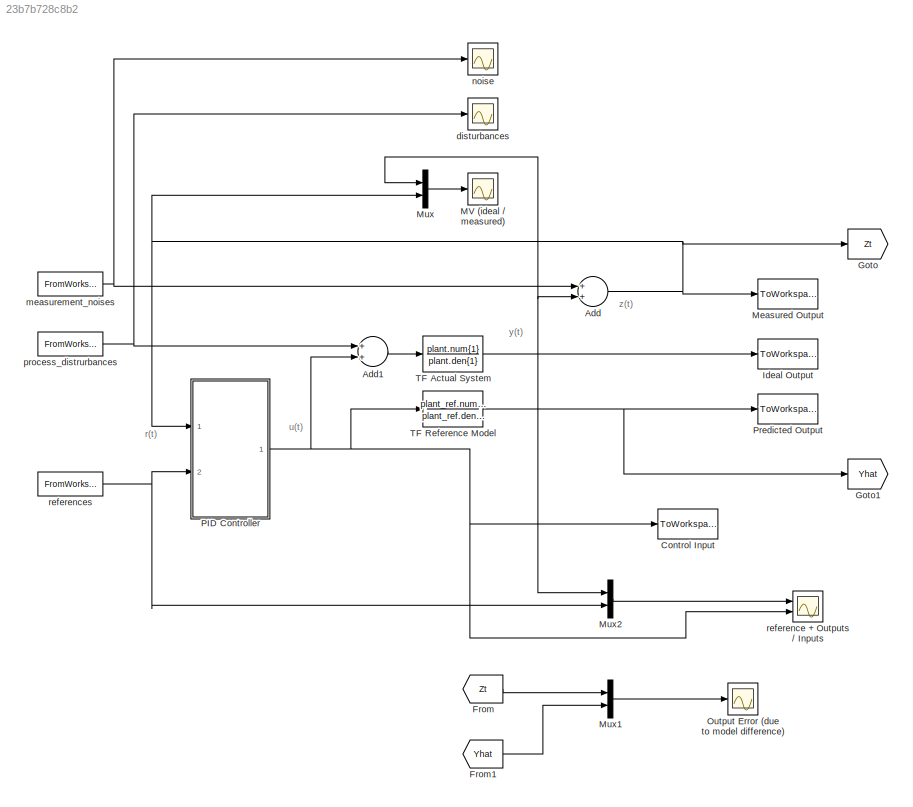
MODEL slx_23b7b728c8b2
KIND model
CONFIG AbsTol = auto
CONFIG FixedStep = auto
CONFIG MaxStep = auto
CONFIG MinStep = auto
CONFIG RelTol = 1e-3
CONFIG SampleTimeConstraint = Unconstrained
CONFIG Solver = ode45
CONFIG SolverMode = SingleTasking
CONFIG SolverName = ode45
CONFIG StartTime = 0.0
CONFIG StopTime = simu.time
BLOCK [Sum] Add
  InputSameDT = off
  OutDataTypeStr = Inherit: Inherit via internal rule
  Ports = [2, 1]
  SaturateOnIntegerOverflow = off
BLOCK [Sum] Add1
  InputSameDT = off
  OutDataTypeStr = Inherit: Inherit via internal rule
  Ports = [2, 1]
  SaturateOnIntegerOverflow = off
BLOCK [ToWorkspace] Control Input
  MaxDataPoints = Inf
  Ports = [1]
  SampleTime = simu.samlping_time
  VariableName = u
BLOCK [From] From
  GotoTag = Zt
BLOCK [From] From1
  GotoTag = Yhat
BLOCK [Goto] Goto
  GotoTag = Zt
BLOCK [Goto] Goto1
  GotoTag = Yhat
BLOCK [ToWorkspace] Ideal Output
  MaxDataPoints = Inf
  Ports = [1]
  SampleTime = simu.samlping_time
  VariableName = y
BLOCK [Scope] MV (ideal // measured)
  DataFormat = Structure
  Floating = off
  LimitDataPoints = off
  NumInputPorts = 1
  Ports = [1]
  SaveName = ScopeData1
  TimeRange = 10
  YMax = 1.75
  YMin = -1.5
  ZoomMode = xonly
BLOCK [ToWorkspace] Measured Output
  MaxDataPoints = Inf
  Ports = [1]
  SampleTime = simu.samlping_time
  VariableName = z
BLOCK [Mux] Mux
  DisplayOption = bar
  Inputs = 2
  Ports = [2, 1]
BLOCK [Mux] Mux1
  DisplayOption = bar
  Inputs = 2
  Ports = [2, 1]
BLOCK [Mux] Mux2
  DisplayOption = bar
  Inputs = 2
  Ports = [2, 1]
BLOCK [Scope] Output Error (due to model difference)
  DataFormat = Structure
  Floating = off
  LimitDataPoints = off
  NumInputPorts = 1
  Ports = [1]
  SampleInput = on
  SampleTime = simu.samlping_time
  SaveName = ScopeData2
  TimeRange = 10
  YMax = -29.6
  YMin = -29.95
  ZoomMode = xonly
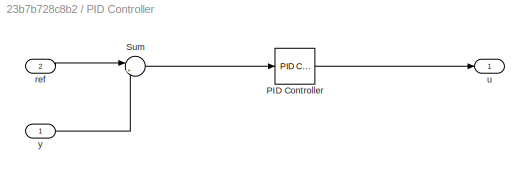
BLOCK [SubSystem] PID Controller
  Ports = [2, 1]
  RequestExecContextInheritance = off
BLOCK [Reference] PID Controller/PID Controller  REF=simulink/Continuous/PID Controller
  AntiWindupMode = none
  Controller = PID
  ControllerParametersSource = internal
  D = 0
  DGainOutDataTypeStr = Inherit: Inherit via internal rule
  DOutDataTypeStr = Inherit: Inherit via internal rule
  DOutMax = []
  DOutMin = []
  DParamDataTypeStr = Inherit: Inherit via internal rule
  DParamMax = []
  DParamMin = []
  DProdOutDataTypeStr = Inherit: Inherit via internal rule
  DifferentiatorICPrevScaledInput = 0
  DifferentiatorOutDataTypeStr = Inherit: Inherit via internal rule
  DifferentiatorOutMax = []
  DifferentiatorOutMin = []
  ExternalReset = none
  FilterContinuousStateAttributes = ''
  FilterMethod = Forward Euler
  FilterOutDataTypeStr = Inherit: Inherit via internal rule
  FilterOutMax = []
  FilterOutMin = []
  FilterRTWStateStorageClass = Auto
  FilterStateMustResolveToSignalObject = off
  Form = Parallel
  I = 1
  IGainOutDataTypeStr = Inherit: Inherit via internal rule
  IOutDataTypeStr = Inherit: Inherit via internal rule
  IOutMax = []
  IOutMin = []
  IParamDataTypeStr = Inherit: Inherit via internal rule
  IParamMax = []
  IParamMin = []
  IProdOutDataTypeStr = Inherit: Inherit via internal rule
  IgnoreLimit = off
  InitialConditionForFilter = 0
  InitialConditionForIntegrator = 0
  InitialConditionSource = internal
  IntegratorContinuousStateAttributes = ''
  IntegratorMethod = Forward Euler
  IntegratorOutDataTypeStr = Inherit: Inherit via internal rule
  IntegratorOutMax = []
  IntegratorOutMin = []
  IntegratorRTWStateStorageClass = Auto
  IntegratorStateMustResolveToSignalObject = off
  Kb = 1
  KbOutDataTypeStr = Inherit: Inherit via internal rule
  KbOutMax = []
  KbOutMin = []
  KbParamDataTypeStr = Inherit: Inherit via internal rule
  KbParamMax = []
  KbParamMin = []
  Kt = 1
  KtOutDataTypeStr = Inherit: Inherit via internal rule
  KtOutMax = []
  KtOutMin = []
  KtParamDataTypeStr = Inherit: Inherit via internal rule
  KtParamMax = []
  KtParamMin = []
  LimitOutput = off
  LinearizeAsGain = on
  LockScale = off
  LowerSaturationLimit = -inf
  N = 10
  NGainOutDataTypeStr = Inherit: Inherit via internal rule
  NOutDataTypeStr = Inherit: Inherit via internal rule
  NOutMax = []
  NOutMin = []
  NParamDataTypeStr = Inherit: Inherit via internal rule
  NParamMax = []
  NParamMin = []
  NProdOutDataTypeStr = Inherit: Inherit via internal rule
  P = 10
  PGainOutDataTypeStr = Inherit: Inherit via internal rule
  POutDataTypeStr = Inherit: Inherit via internal rule
  POutMax = []
  POutMin = []
  PParamDataTypeStr = Inherit: Inherit via internal rule
  PParamMax = []
  PParamMin = []
  PProdOutDataTypeStr = Inherit: Inherit via internal rule
  Ports = [1, 1]
  RndMeth = Floor
  SampleTime = 0.035
  SaturateOnIntegerOverflow = off
  SaturationOutDataTypeStr = Inherit: Same as input
  SaturationOutMax = []
  SaturationOutMin = []
  SourceBlock = simulink/Continuous/PID Controller
  SourceType = PID 1dof
  SumAccumDataTypeStr = Inherit: Inherit via internal rule
  SumDAccumDataTypeStr = Inherit: Inherit via internal rule
  SumDOutDataTypeStr = Inherit: Inherit via internal rule
  SumDOutMax = []
  SumDOutMin = []
  SumI1AccumDataTypeStr = Inherit: Inherit via internal rule
  SumI1OutDataTypeStr = Inherit: Inherit via internal rule
  SumI1OutMax = []
  SumI1OutMin = []
  SumI2AccumDataTypeStr = Inherit: Inherit via internal rule
  SumI2OutDataTypeStr = Inherit: Inherit via internal rule
  SumI2OutMax = []
  SumI2OutMin = []
  SumI3AccumDataTypeStr = Inherit: Inherit via internal rule
  SumI3OutDataTypeStr = Inherit: Inherit via internal rule
  SumI3OutMax = []
  SumI3OutMin = []
  SumOutDataTypeStr = Inherit: Inherit via internal rule
  SumOutMax = []
  SumOutMin = []
  TimeDomain = Discrete-time
  TrackingMode = off
  UpperSaturationLimit = inf
  UseFilter = on
  ZeroCross = on
BLOCK [Sum] PID Controller/Sum
  IconShape = round
  InputSameDT = off
  Inputs = |+-
  OutDataTypeStr = Inherit: Inherit via internal rule
  Ports = [2, 1]
  SaturateOnIntegerOverflow = off
BLOCK [Inport] PID Controller/ref
  IconDisplay = Port number
  Port = 2
BLOCK [Outport] PID Controller/u
  IconDisplay = Port number
BLOCK [Inport] PID Controller/y
  IconDisplay = Port number
BLOCK [ToWorkspace] Predicted Output
  MaxDataPoints = Inf
  Ports = [1]
  SampleTime = simu.samlping_time
  VariableName = y_hat
BLOCK [TransferFcn] TF Actual System
  Denominator = plant.den{1}
  Numerator = plant.num{1}
BLOCK [TransferFcn] TF Reference Model
  Denominator = plant_ref.den{1}
  Numerator = plant_ref.num{1}
BLOCK [Scope] disturbances
  DataFormat = Structure
  Floating = off
  LimitDataPoints = off
  NumInputPorts = 1
  Ports = [1]
  SampleInput = on
  SampleTime = simu.samlping_time
  SaveName = ScopeData4
  TimeRange = 10
  YMax = -29.6
  YMin = -29.95
  ZoomMode = xonly
BLOCK [FromWorkspace] measurement_noises
  SampleTime = 0
  VariableName = noise_input
  ZeroCross = on
BLOCK [Scope] noise
  DataFormat = Structure
  Floating = off
  LimitDataPoints = off
  NumInputPorts = 1
  Ports = [1]
  SampleInput = on
  SampleTime = simu.samlping_time
  SaveName = ScopeData3
  TimeRange = 10
  YMax = -29.6
  YMin = -29.95
  ZoomMode = xonly
BLOCK [FromWorkspace] process_distrurbances
  SampleTime = 0
  VariableName = d_input
  ZeroCross = on
BLOCK [Scope] reference + Outputs // Inputs
  DataFormat = Structure
  Floating = off
  LimitDataPoints = off
  NumInputPorts = 2
  Ports = [2]
  SampleInput = on
  SampleTime = simu.samlping_time
  TimeRange = 10
  YMax = 6.000000000000001e+58~2e+59
  YMin = -2e+58~-6e+59
  ZoomMode = yonly
BLOCK [FromWorkspace] references
  SampleTime = 0
  VariableName = ref_input
  ZeroCross = on
ANNOTATION (root): y(t)
ANNOTATION (root): z(t)
ANNOTATION (root): r(t)
ANNOTATION (root): u(t)
LINE Add1:1 -> TF Actual System:1
NET Add:1 -> Goto:1, Measured Output:1, Mux:2, PID Controller:1
LINE From1:1 -> Mux1:2
LINE From:1 -> Mux1:1
LINE Mux1:1 -> Output Error (due to model difference):1
LINE Mux2:1 -> reference + Outputs // Inputs:1
LINE Mux:1 -> MV (ideal // measured):1
LINE PID Controller/PID Controller:1 -> PID Controller/u:1
LINE PID Controller/Sum:1 -> PID Controller/PID Controller:1
LINE PID Controller/ref:1 -> PID Controller/Sum:1
LINE PID Controller/y:1 -> PID Controller/Sum:2
NET PID Controller:1 -> Add1:2, Control Input:1, TF Reference Model:1, reference + Outputs // Inputs:2
NET TF Actual System:1 -> Add:2, Ideal Output:1, Mux2:1, Mux:1
NET TF Reference Model:1 -> Goto1:1, Predicted Output:1
NET measurement_noises:1 -> Add:1, noise:1
NET process_distrurbances:1 -> Add1:1, disturbances:1
NET references:1 -> Mux2:2, PID Controller:2
note: NET lines group one-source signal fan-out (src -> all destinations, sorted); 1:1 wires keep LINE
